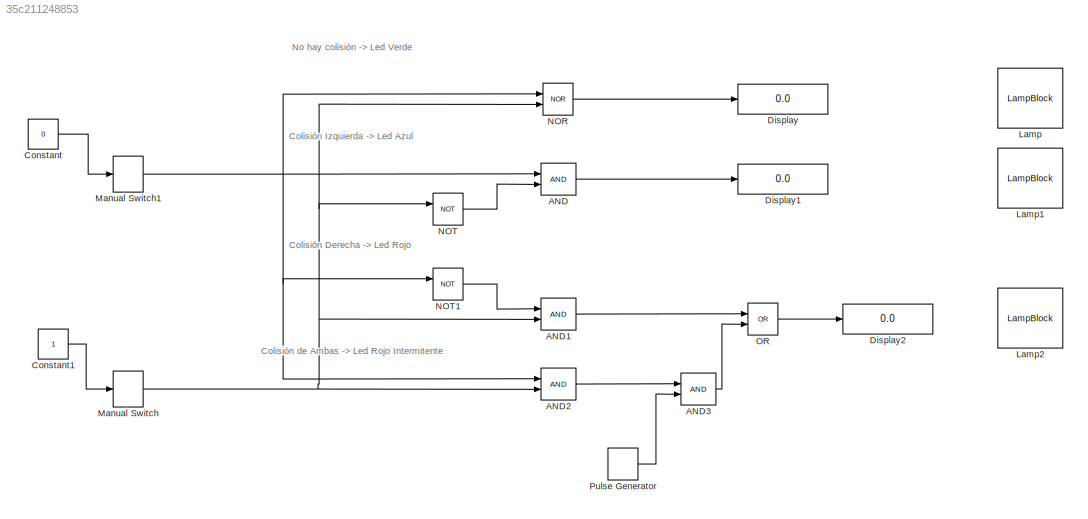
MODEL slx_35c211248853
KIND model
CONFIG AbsTol = auto
CONFIG EnableMultiTasking = off
CONFIG FixedStep = auto
CONFIG MaxStep = auto
CONFIG MinStep = auto
CONFIG RelTol = 1e-3
CONFIG SampleTimeConstraint = Unconstrained
CONFIG SolverName = VariableStepAuto
CONFIG StartTime = 0.0
CONFIG StopTime = inf
BLOCK [Logic] AND
  AllPortsSameDT = off
  IconShape = distinctive
  OutDataTypeStr = boolean
BLOCK [Logic] AND1
  AllPortsSameDT = off
  IconShape = distinctive
  OutDataTypeStr = boolean
BLOCK [Logic] AND2
  AllPortsSameDT = off
  IconShape = distinctive
  OutDataTypeStr = boolean
BLOCK [Logic] AND3
  AllPortsSameDT = off
  IconShape = distinctive
  OutDataTypeStr = boolean
BLOCK [Constant] Constant
  Value = 0
BLOCK [Constant] Constant1
BLOCK [Display] Display
  Decimation = 1
BLOCK [Display] Display1
  Decimation = 1
BLOCK [Display] Display2
  Decimation = 1
BLOCK [LampBlock] Lamp
  LabelPosition = Hide
BLOCK [LampBlock] Lamp1
  LabelPosition = Hide
BLOCK [LampBlock] Lamp2
  LabelPosition = Hide
BLOCK [ManualSwitch] Manual Switch
BLOCK [ManualSwitch] Manual Switch1
BLOCK [Logic] NOR
  AllPortsSameDT = off
  IconShape = distinctive
  Operator = NOR
  OutDataTypeStr = boolean
BLOCK [Logic] NOT
  AllPortsSameDT = off
  IconShape = distinctive
  Operator = NOT
  OutDataTypeStr = boolean
BLOCK [Logic] NOT1
  AllPortsSameDT = off
  IconShape = distinctive
  Operator = NOT
  OutDataTypeStr = boolean
BLOCK [Logic] OR
  AllPortsSameDT = off
  IconShape = distinctive
  Operator = OR
  OutDataTypeStr = boolean
BLOCK [DiscretePulseGenerator] Pulse Generator
  Period = 1
  PulseType = Time based
  PulseWidth = 50
ANNOTATION (root): Colisión Derecha -> Led Rojo
ANNOTATION (root): Colisión Izquierda -> Led Azul
ANNOTATION (root): Colisión de Ambas -> Led Rojo Intermitente
ANNOTATION (root): No hay colisión -> Led Verde
LINE AND1:1 -> OR:1
LINE AND2:1 -> AND3:1
LINE AND3:1 -> OR:2
LINE AND:1 -> Display1:1
LINE Constant1:1 -> Manual Switch:1
LINE Constant:1 -> Manual Switch1:1
NET Manual Switch1:1 -> AND2:1, AND:1, NOR:1, NOT1:1
NET Manual Switch:1 -> AND1:2, AND2:2, NOR:2, NOT:1
LINE NOR:1 -> Display:1
LINE NOT1:1 -> AND1:1
LINE NOT:1 -> AND:2
LINE OR:1 -> Display2:1
LINE Pulse Generator:1 -> AND3:2
note: NET lines group one-source signal fan-out (src -> all destinations, sorted); 1:1 wires keep LINE
